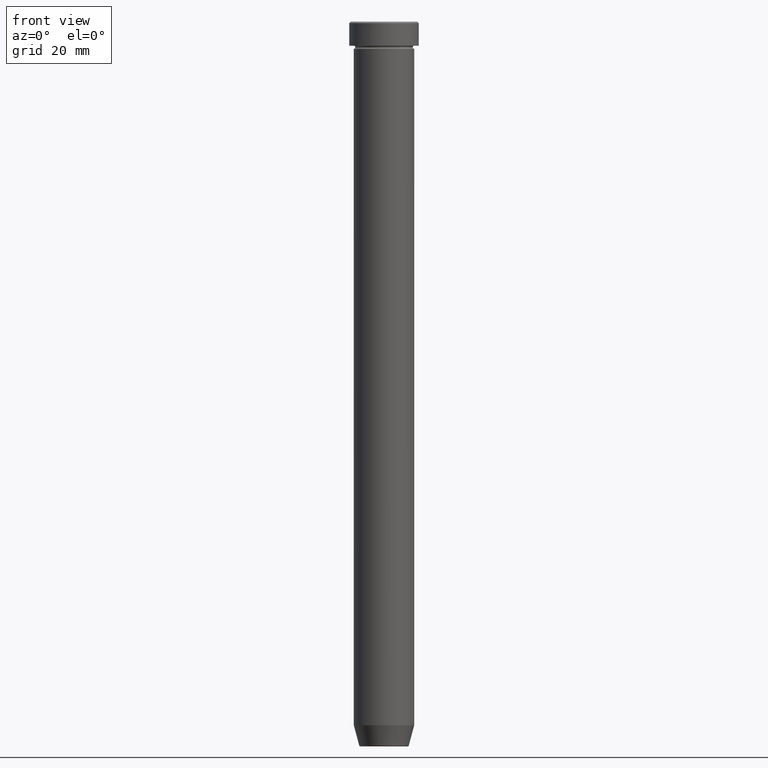
[diagram: clean part render]
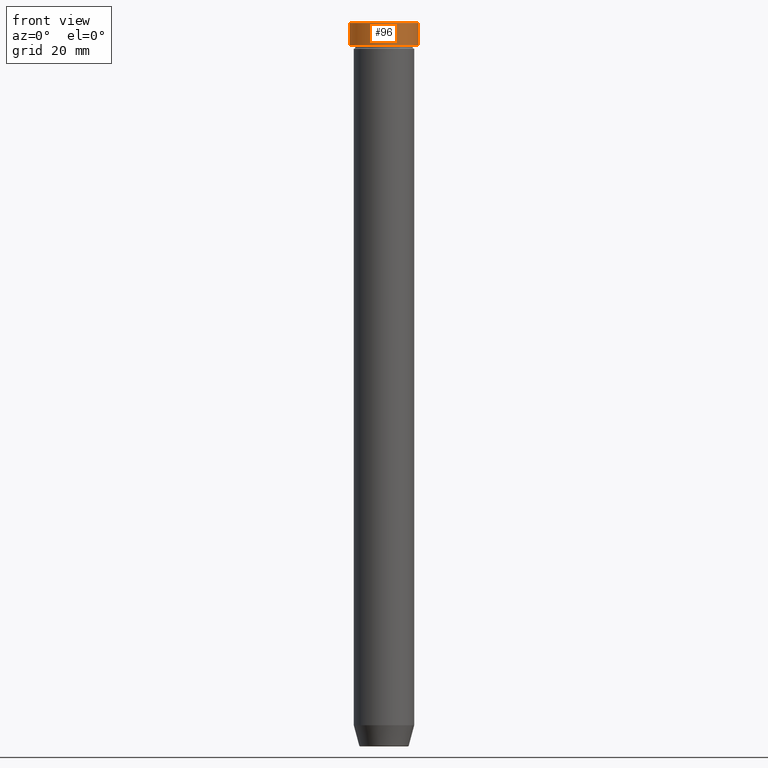
[diagram: same view with one face highlighted and labeled with its STEP entity id]
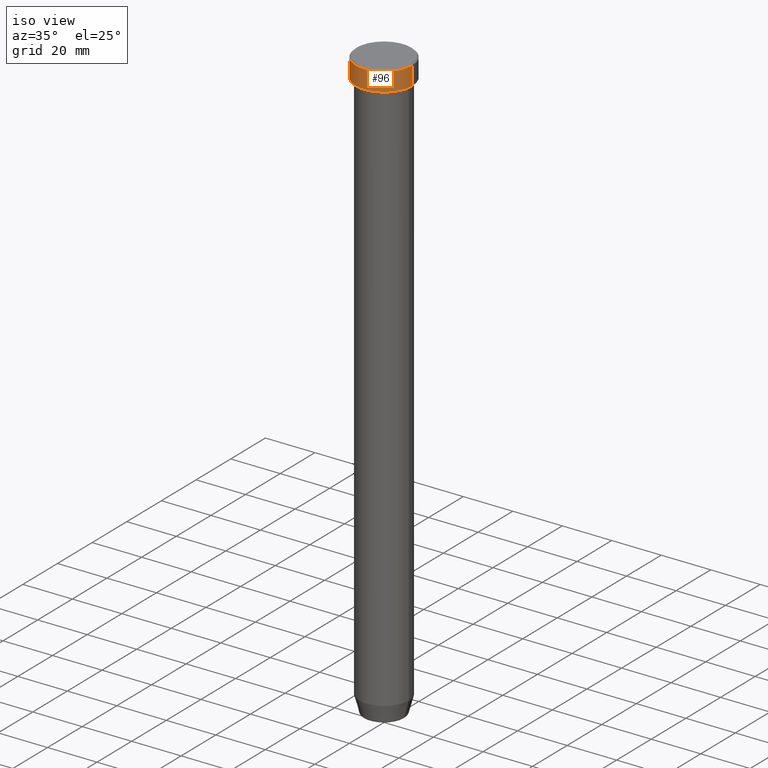
[diagram: same view with one face highlighted and labeled with its STEP entity id]
A machine part, front view. The second image highlights one B-rep face of the part: STEP entity #96.
A second angle (iso view) of the same face is appended — the face is thin or edge-on in the first view.
In plain terms, the highlighted cylindrical surface (edge-blend (fillet) strip) has radius 11.5 mm, axis along (-0, -0, 1).
Its self-contained STEP definition (entity closure, byte-faithful):
#47 = FACE_OUTER_BOUND ( 'NONE', #141, .T. ) ;
#49 = CARTESIAN_POINT ( 'NONE',  ( -11.50000000000000000, 1.408343819019456176E-15, -8.000000000000000000 ) ) ;
#60 = EDGE_CURVE ( 'NONE', #552, #485, #100, .T. ) ;
#81 = LINE ( 'NONE', #177, #558 ) ;
#96 = ADVANCED_FACE ( 'NONE', ( #47 ), #280, .T. ) ;
#100 = CIRCLE ( 'NONE', #588, 11.50000000000000000 ) ;
#103 = CARTESIAN_POINT ( 'NONE',  ( -11.50000000000000000, 1.408343819019456176E-15, 0.000000000000000000 ) ) ;
#141 = EDGE_LOOP ( 'NONE', ( #349, #206, #436, #545 ) ) ;
#149 = CARTESIAN_POINT ( 'NONE',  ( 0.000000000000000000, 0.000000000000000000, -0.5000000000000073275 ) ) ;
#151 = VERTEX_POINT ( 'NONE', #547 ) ;
#177 = CARTESIAN_POINT ( 'NONE',  ( 11.50000000000000000, 0.000000000000000000, 0.000000000000000000 ) ) ;
#197 = DIRECTION ( 'NONE',  ( 1.000000000000000000, 0.000000000000000000, 0.000000000000000000 ) ) ;
#200 = AXIS2_PLACEMENT_3D ( 'NONE', #149, #332, #197 ) ;
#206 = ORIENTED_EDGE ( 'NONE', *, *, #60, .T. ) ;
#260 = CARTESIAN_POINT ( 'NONE',  ( 11.50000000000000000, 0.000000000000000000, -8.000000000000000000 ) ) ;
#264 = EDGE_CURVE ( 'NONE', #342, #151, #267, .T. ) ;
#267 = CIRCLE ( 'NONE', #200, 11.50000000000000000 ) ;
#280 = CYLINDRICAL_SURFACE ( 'NONE', #321, 11.50000000000000000 ) ;
#287 = DIRECTION ( 'NONE',  ( -0.000000000000000000, -0.000000000000000000, 1.000000000000000000 ) ) ;
#296 = EDGE_CURVE ( 'NONE', #552, #151, #426, .T. ) ;
#313 = DIRECTION ( 'NONE',  ( -0.000000000000000000, -0.000000000000000000, 1.000000000000000000 ) ) ;
#315 = VECTOR ( 'NONE', #287, 1000.000000000000000 ) ;
#321 = AXIS2_PLACEMENT_3D ( 'NONE', #324, #364, #460 ) ;
#324 = CARTESIAN_POINT ( 'NONE',  ( 0.000000000000000000, 0.000000000000000000, 0.000000000000000000 ) ) ;
#332 = DIRECTION ( 'NONE',  ( 0.000000000000000000, 0.000000000000000000, -1.000000000000000000 ) ) ;
#342 = VERTEX_POINT ( 'NONE', #434 ) ;
#349 = ORIENTED_EDGE ( 'NONE', *, *, #296, .F. ) ;
#358 = CARTESIAN_POINT ( 'NONE',  ( 0.000000000000000000, 0.000000000000000000, -8.000000000000000000 ) ) ;
#364 = DIRECTION ( 'NONE',  ( -0.000000000000000000, -0.000000000000000000, 1.000000000000000000 ) ) ;
#426 = LINE ( 'NONE', #103, #315 ) ;
#434 = CARTESIAN_POINT ( 'NONE',  ( 11.50000000000000000, 0.000000000000000000, -0.5000000000000073275 ) ) ;
#436 = ORIENTED_EDGE ( 'NONE', *, *, #550, .T. ) ;
#460 = DIRECTION ( 'NONE',  ( 1.000000000000000000, 0.000000000000000000, 0.000000000000000000 ) ) ;
#464 = DIRECTION ( 'NONE',  ( -0.000000000000000000, -0.000000000000000000, 1.000000000000000000 ) ) ;
#485 = VERTEX_POINT ( 'NONE', #260 ) ;
#503 = DIRECTION ( 'NONE',  ( 1.000000000000000000, 0.000000000000000000, 0.000000000000000000 ) ) ;
#545 = ORIENTED_EDGE ( 'NONE', *, *, #264, .T. ) ;
#547 = CARTESIAN_POINT ( 'NONE',  ( -11.50000000000000000, 1.408343819019456176E-15, -0.5000000000000073275 ) ) ;
#550 = EDGE_CURVE ( 'NONE', #485, #342, #81, .T. ) ;
#552 = VERTEX_POINT ( 'NONE', #49 ) ;
#558 = VECTOR ( 'NONE', #464, 1000.000000000000000 ) ;
#588 = AXIS2_PLACEMENT_3D ( 'NONE', #358, #313, #503 ) ;